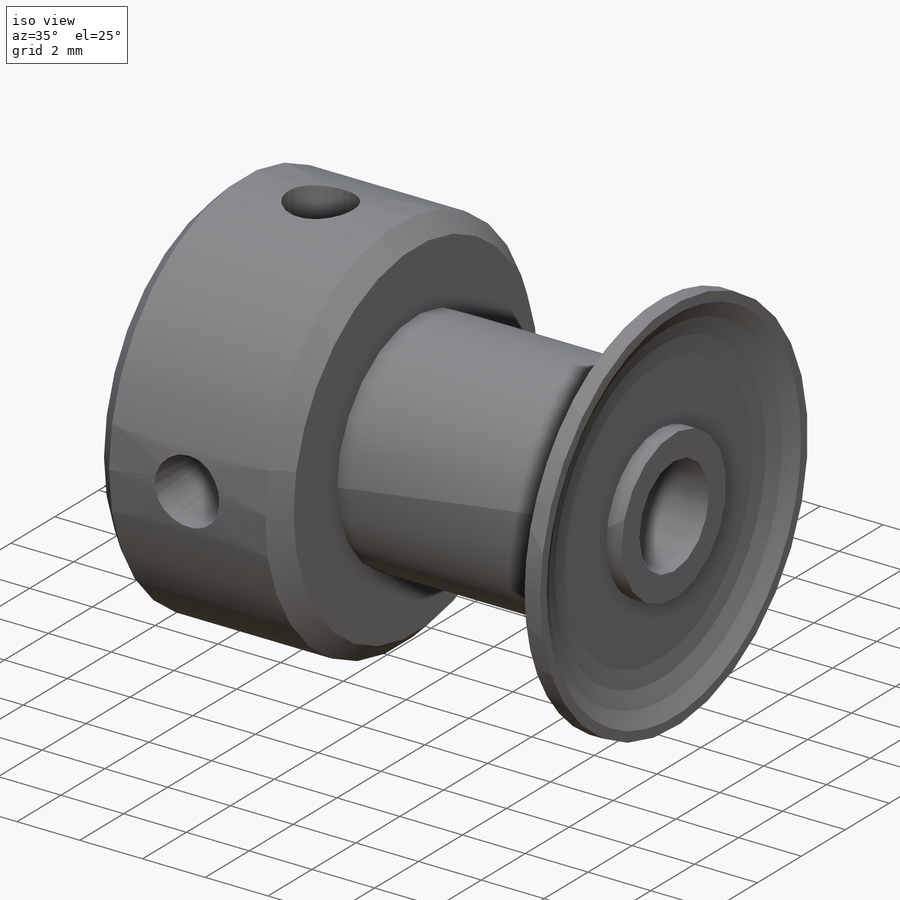
[diagram: iso view]
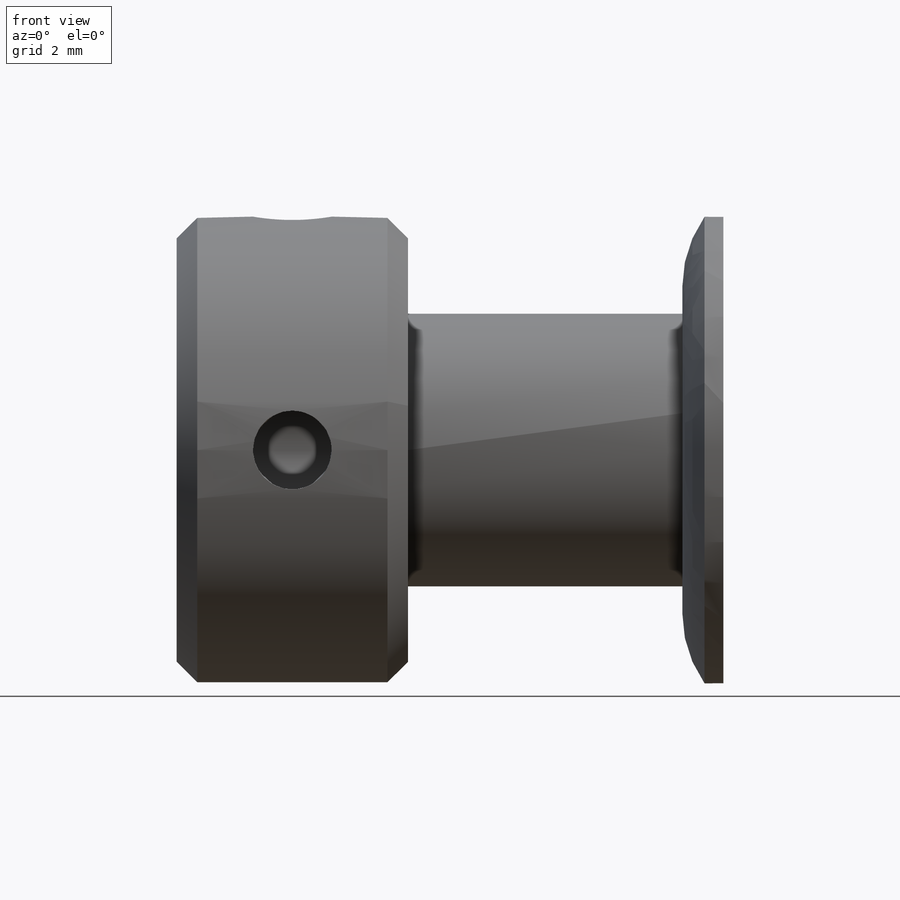
[diagram: front view]
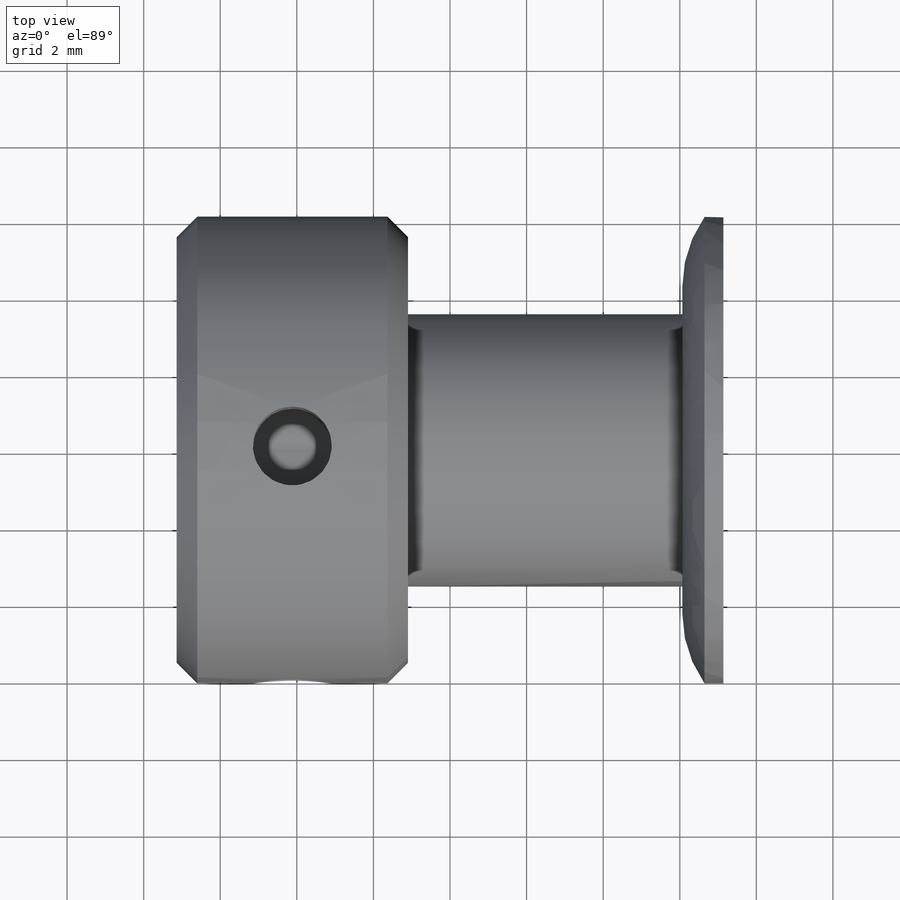
[diagram: top view]
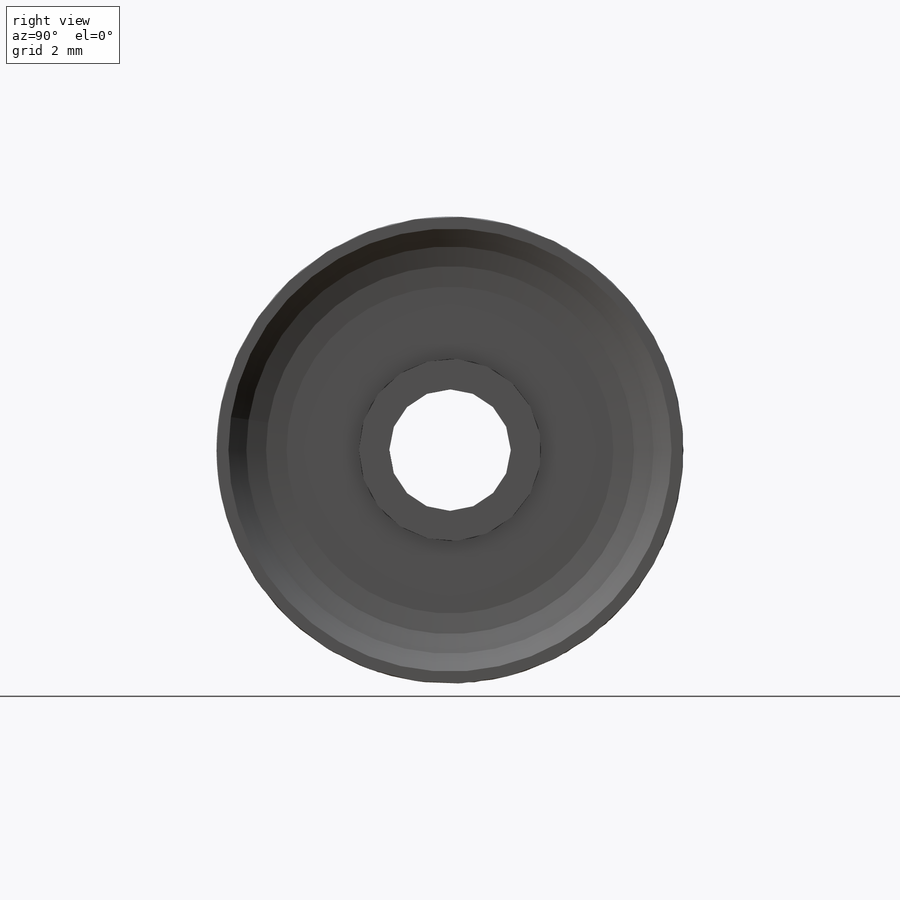
[diagram: right view]
SOLIDWORKS PART (.sldprt)
format: sldprt  version: not decoded by parser v0  size: 315,392 bytes
history: native  units: mm
features: sketch x4, revolve x3, thread x2, material x1, cut_extrude x1, pattern_circular x1 (+13 scaffold rows collapsed)
feature tree (25):
  scaffold x13  (default folders/planes/origin — collapsed)
  material  "Material <not specified>"
  sketch  "Sketch2"  dims[c1.D1=3.175mm c1.D2=14.2748mm c1.D3=7.1374mm c1.D4=12.192mm c1.D5=7.1628mm c1.Dimension [E]=14.2748mm c1.Bore [A]=3.175mm c1.Width [DD]=7.1628mm c1.Outside Diameter [B]=7.1374mm c2.D3=~1.07061mm c2.D4=4.7625mm]
  revolve  "Base Body"  Angle=360deg
  sketch  "Sketch3"  dims[c1.Hub Diameter [F]=12.192mm c1.D2=0.635mm c1.D3=0.635mm c2.D2=~0.53721mm c2.D3=0.635mm c2.D4=7.1374mm]
  revolve  "Hub"  Angle=360deg
  sketch  "Sketch4"  dims[c1.D2=3.175mm c1.Diameter [CC]=12.192mm c1.D1=4.2672mm c1.D3=0.508mm c2.D1=0.508mm]
  revolve  "Flange"  Angle=360deg
  sketch  "Sketch5"  dims[Diameter [DI]=2.0574mm]
  cut_extrude  "Set Screws"  [1 undecoded]
  thread  "Cosmetic Thread2"  Diameter=2.16027mm  [1 undecoded]
  pattern_circular  "CirPattern1"  [2 undecoded]
  thread  "Cosmetic Thread1"  Diameter=2.16027mm  [1 undecoded]
decode coverage: 9 of 11 modeling features carry decoded parameters
note: ~ marks probable driven/reference dimensions
note: 5 parameter values undecoded
note: suppression state not decoded; provenance and decode notes live in map.json
